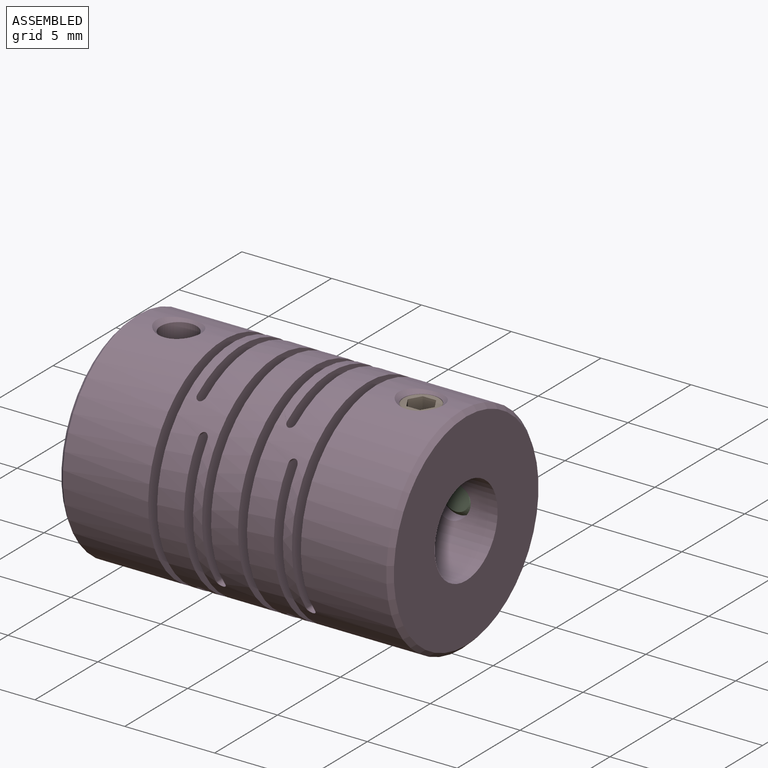
[diagram: assembled view]
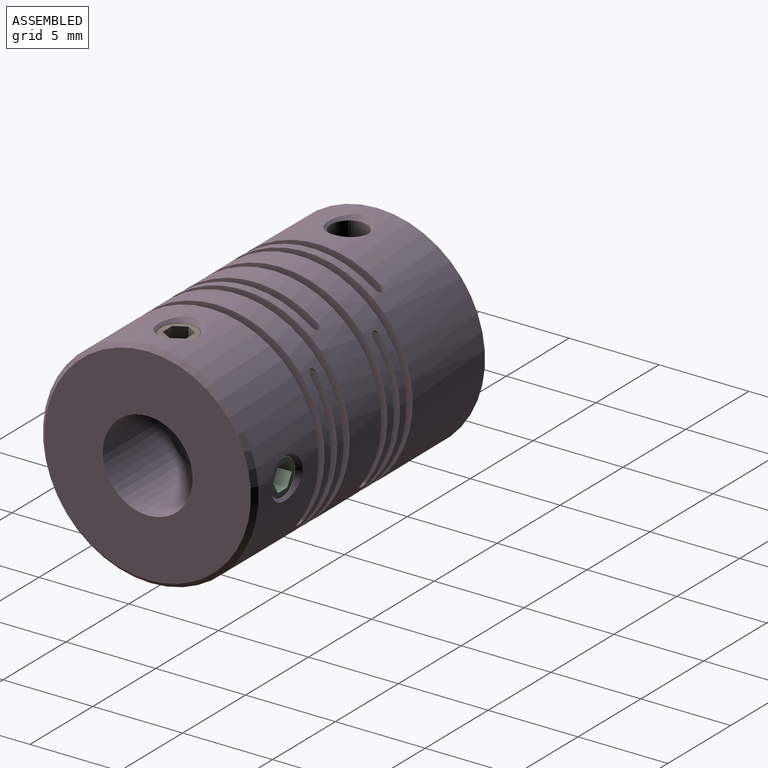
[diagram: assembled view, second angle]
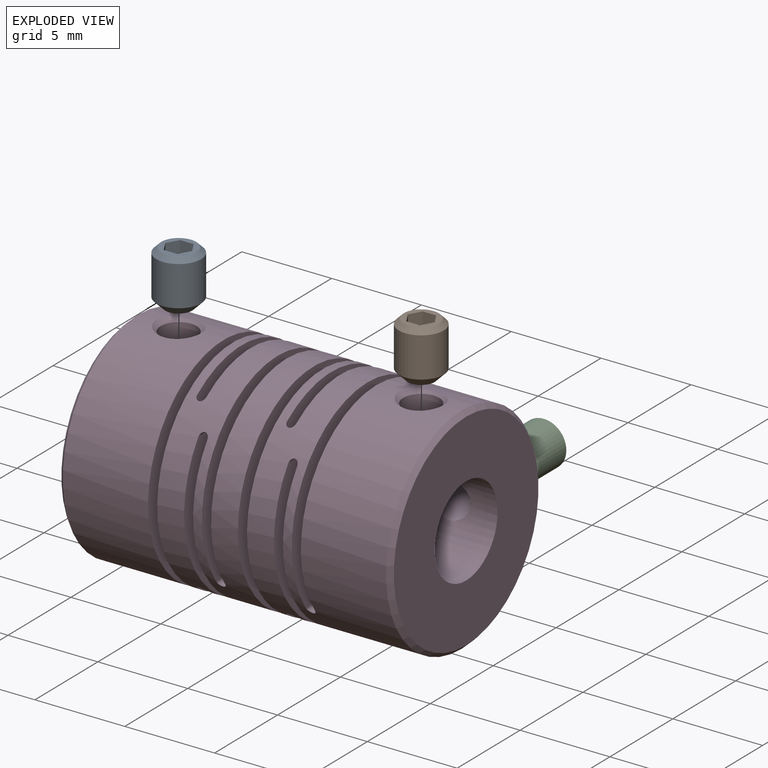
[diagram: exploded view]
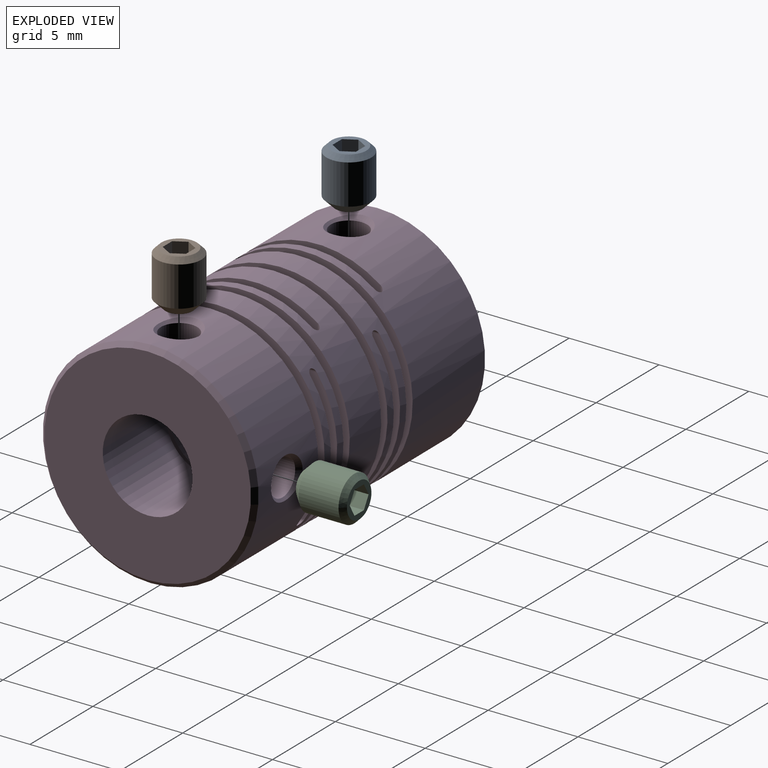
[diagram: exploded view, second angle]
ASSEMBLY  parts=4 mates=3
PART A: 18 faces, bbox 3x2.5x2.5 mm
  f0: plane 0.65x0.19mm, normal (-1,0,0), area 0mm2, adj f5,f6,f17
  f1: plane 0.56x0.33mm, normal (-1,0,0), area 0mm2, adj f5,f16,f17
  f2: plane 0.56x0.33mm, normal (-1,0,0), area 0mm2, adj f5,f6,f13
  f3: plane 0.56x0.33mm, normal (-1,0,0), area 0mm2, adj f5,f13,f14
  f4: plane 0.65x0.19mm, normal (-1,0,0), area 0mm2, adj f5,f14,f15
  f5: cone r=0.65mm half-angle=60deg, axis (-1,0,0), area 1.5mm2, adj f0,f1,f2,f3,f4,f7
  f6: plane 1.2x0.65mm, normal (0,0.5,0.87), area 0.9mm2, adj f0,f2,f8,f13,f17
  f7: plane 0.56x0.33mm, normal (-1,0,0), area 0mm2, adj f5,f15,f16
  f8: plane 1.95x1.95mm, normal (-1,0,0), area 1.5mm2, adj f6,f9,f13,f14,f15,f16,f17
  f9: cone r=0.97mm half-angle=45deg, axis (1,0,0), area 2.7mm2, adj f8,f10
  f10: cylinder r=1.25mm len=2.5mm, axis (-1,0,0), area 17.5mm2, adj f9,f11
  f11: cone r=1.25mm half-angle=45deg, axis (-1,0,0), area 4.4mm2, adj f10,f12
  f12: plane 1.5x1.5mm, normal (1,0,0), area 1.8mm2, adj f11
  f13: plane 1.2x0.75mm, normal (0,1,0), area 0.9mm2, adj f2,f3,f6,f8,f14
  f14: plane 1.2x0.65mm, normal (0,0.5,-0.87), area 0.9mm2, adj f3,f4,f8,f13,f15
  f15: plane 1.2x0.65mm, normal (0,-0.5,-0.87), area 0.9mm2, adj f4,f7,f8,f14,f16
  f16: plane 1.2x0.75mm, normal (0,-1,0), area 0.9mm2, adj f1,f7,f8,f15,f17
  f17: plane 1.2x0.65mm, normal (0,-0.5,0.87), area 0.9mm2, adj f0,f1,f6,f8,f16
PART B: same geometry as A
PART C: same geometry as A
PART D: 44 faces, bbox 18.5x12x12 mm
  f0: cone r=1.25mm half-angle=45deg, axis (0,0,1), area 1.8mm2, adj f3,f29
  f1: cone r=6mm half-angle=45deg, axis (1,0,0), area 13.1mm2, adj f3,f40
  f2: cone r=5.75mm half-angle=45deg, axis (-1,0,0), area 13.1mm2, adj f3,f30
  f3: cylinder r=6mm len=18mm, axis (-1,0,0), area 557.8mm2, adj f0,f1,f2,f5,f6,f7,f8,f9
  f4: cylinder r=2.75mm len=5.5mm, axis (-1,0,0), area 8.6mm2, adj f12,f17
  f5: cylinder r=0.25mm len=9.75mm, axis (0,0,1), area 7.7mm2, adj f3,f6,f22
  f6: plane 12x9.5mm, normal (1,0,0), area 72.3mm2, adj f3,f5,f38
  f7: plane 12x9.5mm, normal (-1,0,0), area 72.3mm2, adj f3,f24,f38
  f8: plane 12x9.5mm, normal (1,0,0), area 72.3mm2, adj f3,f9,f35
  f9: cylinder r=0.25mm len=9.75mm, axis (0,0,1), area 7.7mm2, adj f3,f8,f23
  f10: cylinder r=0.25mm len=9.75mm, axis (0,0,1), area 7.7mm2, adj f3,f11,f12
  f11: plane 12x9.5mm, normal (1,0,0), area 72.3mm2, adj f3,f10,f36
  f12: plane 12x9.5mm, normal (-1,0,0), area 72.3mm2, adj f3,f4,f10
  f13: plane 12x9.5mm, normal (1,0,0), area 72.3mm2, adj f3,f15,f37
  f14: plane 12x9.5mm, normal (-1,0,0), area 72.3mm2, adj f3,f15,f35
  f15: cylinder r=0.25mm len=9.75mm, axis (0,1,0), area 7.7mm2, adj f3,f13,f14
  f16: cylinder r=0.25mm len=9.75mm, axis (0,1,0), area 7.7mm2, adj f3,f17,f43
  f17: plane 12x9.5mm, normal (1,0,0), area 72.3mm2, adj f3,f4,f16
  f18: plane 12x9.5mm, normal (-1,0,0), area 72.3mm2, adj f3,f19,f37
  f19: cylinder r=0.25mm len=9.75mm, axis (0,1,0), area 7.7mm2, adj f3,f18,f20
  f20: plane 12x9.5mm, normal (1,0,0), area 72.3mm2, adj f3,f19,f21
  f21: cylinder r=2.75mm len=5.5mm, axis (-1,0,0), area 8.6mm2, adj f20,f22
  f22: plane 12x9.5mm, normal (-1,0,0), area 72.3mm2, adj f3,f5,f21
  f23: plane 12x9.5mm, normal (-1,0,0), area 72.3mm2, adj f3,f9,f36
  f24: cylinder r=0.25mm len=9.75mm, axis (0,0,1), area 7.7mm2, adj f3,f7,f41
  f25: cylinder r=1.01mm len=3.47mm, axis (0,1,0), area 21.9mm2, adj f26,f31
  f26: cone r=1.25mm half-angle=45deg, axis (0,1,0), area 1.8mm2, adj f3,f25
  f27: cylinder r=1.01mm len=3.26mm, axis (0,0,1), area 20.6mm2, adj f28,f31
  f28: cone r=1.25mm half-angle=45deg, axis (0,0,1), area 1.8mm2, adj f3,f27
  f29: cylinder r=1.01mm len=3.76mm, axis (0,0,1), area 23.8mm2, adj f0,f39
  f30: plane 11.5x11.5mm, normal (1,0,0), area 84.2mm2, adj f2,f31
  f31: cylinder r=2.5mm len=5mm, axis (-1,0,0), area 72mm2, adj f25,f27,f30,f32
  f32: plane 12x9.5mm, normal (-1,0,0), area 76.4mm2, adj f3,f31,f34
  f33: plane 12x9.5mm, normal (1,0,0), area 72.3mm2, adj f3,f34,f42
  f34: cylinder r=0.25mm len=9.75mm, axis (0,1,0), area 7.7mm2, adj f3,f32,f33
  f35: cylinder r=2.75mm len=5.5mm, axis (-1,0,0), area 25.9mm2, adj f8,f14
  f36: cylinder r=2.75mm len=5.5mm, axis (-1,0,0), area 8.6mm2, adj f11,f23
  f37: cylinder r=2.75mm len=5.5mm, axis (-1,0,0), area 8.6mm2, adj f13,f18
  f38: cylinder r=2.75mm len=5.5mm, axis (-1,0,0), area 8.6mm2, adj f6,f7
  f39: cylinder r=2mm len=5mm, axis (-1,0,0), area 59.5mm2, adj f29,f40,f41
  f40: plane 11.5x11.5mm, normal (-1,0,0), area 91.3mm2, adj f1,f39
  f41: plane 12x9.5mm, normal (1,0,0), area 83.5mm2, adj f3,f24,f39
  f42: cylinder r=2.75mm len=5.5mm, axis (-1,0,0), area 8.6mm2, adj f33,f43
  f43: plane 12x9.5mm, normal (-1,0,0), area 72.3mm2, adj f3,f16,f42
PLACE A rot(axis=(0.71,0,-0.71),180deg) t=(2.5,0,1.73)mm
PLACE B rot(axis=(0.71,0,-0.71),180deg) t=(16,0,2.76)mm
PLACE C rot(axis=(0.58,-0.58,-0.58),120deg) t=(16,2.76,0)mm
PLACE D at identity
MATE fastened C.f5 <-> D.f25  axis (0,1,0) through (16,5.76,0)mm
MATE fastened B.f5 <-> D.f27  axis (0,0,1) through (16,0,5.76)mm
MATE fastened A.f5 <-> D.f0  axis (0,0,-1) through (2.5,0,1.73)mm
